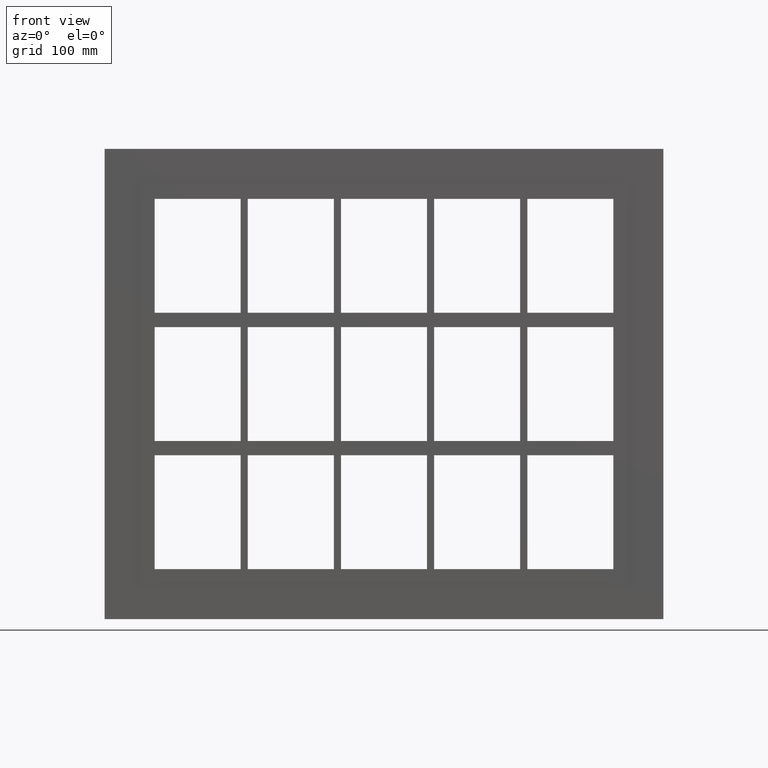
[diagram: clean part render]
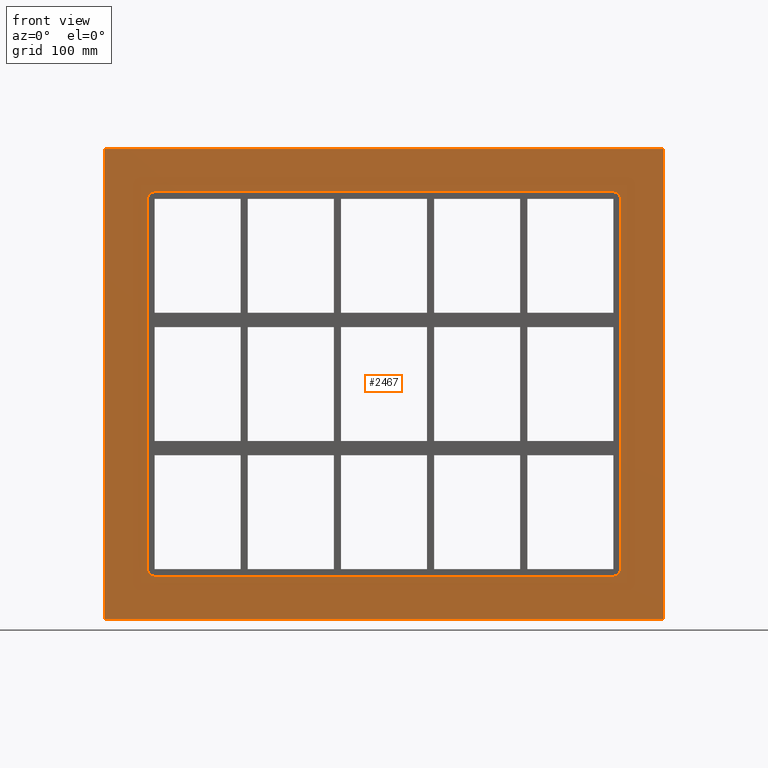
[diagram: same view with one face highlighted and labeled with its STEP entity id]
A machine part, front view. The second image highlights one B-rep face of the part: STEP entity #2467.
In plain terms, the highlighted planar face has unit normal (0, 1, 0).
Its self-contained STEP definition (entity closure, byte-faithful):
#2358=CARTESIAN_POINT('',(0.0,0.0,0.0));
#2359=DIRECTION('',(0.0,1.0,0.0));
#2360=DIRECTION('',(0.0,0.0,1.0));
#2361=AXIS2_PLACEMENT_3D('',#2358,#2359,#2360);
#2362=PLANE('',#2361);
#2363=CARTESIAN_POINT('',(-391.25,0.0,329.25));
#2364=VERTEX_POINT('',#2363);
#2365=CARTESIAN_POINT('',(391.25,0.0,329.25));
#2366=VERTEX_POINT('',#2365);
#2367=CARTESIAN_POINT('',(-391.25,0.0,329.25));
#2368=DIRECTION('',(1.0,0.0,0.0));
#2369=VECTOR('',#2368,782.5);
#2370=LINE('',#2367,#2369);
#2371=EDGE_CURVE('',#2364,#2366,#2370,.T.);
#2372=ORIENTED_EDGE('',*,*,#2371,.F.);
#2373=CARTESIAN_POINT('',(-391.25,0.0,-329.25));
#2374=VERTEX_POINT('',#2373);
#2375=CARTESIAN_POINT('',(-391.25,0.0,-329.25));
#2376=DIRECTION('',(0.0,0.0,1.0));
#2377=VECTOR('',#2376,658.5);
#2378=LINE('',#2375,#2377);
#2379=EDGE_CURVE('',#2374,#2364,#2378,.T.);
#2380=ORIENTED_EDGE('',*,*,#2379,.F.);
#2381=CARTESIAN_POINT('',(391.25,0.0,-329.25));
#2382=VERTEX_POINT('',#2381);
#2383=CARTESIAN_POINT('',(391.25,0.0,-329.25));
#2384=DIRECTION('',(-1.0,0.0,0.0));
#2385=VECTOR('',#2384,782.5);
#2386=LINE('',#2383,#2385);
#2387=EDGE_CURVE('',#2382,#2374,#2386,.T.);
#2388=ORIENTED_EDGE('',*,*,#2387,.F.);
#2389=CARTESIAN_POINT('',(391.25,0.0,329.25));
#2390=DIRECTION('',(0.0,0.0,-1.0));
#2391=VECTOR('',#2390,658.5);
#2392=LINE('',#2389,#2391);
#2393=EDGE_CURVE('',#2366,#2382,#2392,.T.);
#2394=ORIENTED_EDGE('',*,*,#2393,.F.);
#2395=EDGE_LOOP('',(#2372,#2380,#2388,#2394));
#2396=FACE_OUTER_BOUND('',#2395,.T.);
#2397=CARTESIAN_POINT('',(-331.25,0.0,-259.25000000000006));
#2398=VERTEX_POINT('',#2397);
#2399=CARTESIAN_POINT('',(-321.25,0.0,-269.25000000000006));
#2400=VERTEX_POINT('',#2399);
#2401=CARTESIAN_POINT('',(-321.25,0.0,-259.25000000000006));
#2402=DIRECTION('',(0.0,-1.0,0.0));
#2403=DIRECTION('',(-0.707106781186547,0.0,-0.707106781186547));
#2404=AXIS2_PLACEMENT_3D('',#2401,#2402,#2403);
#2405=CIRCLE('',#2404,9.999999999999998);
#2406=EDGE_CURVE('',#2398,#2400,#2405,.T.);
#2407=ORIENTED_EDGE('',*,*,#2406,.F.);
#2408=CARTESIAN_POINT('',(-331.25,0.0,259.25));
#2409=VERTEX_POINT('',#2408);
#2410=CARTESIAN_POINT('',(-331.25,0.0,259.25));
#2411=DIRECTION('',(0.0,0.0,-1.0));
#2412=VECTOR('',#2411,518.5);
#2413=LINE('',#2410,#2412);
#2414=EDGE_CURVE('',#2409,#2398,#2413,.T.);
#2415=ORIENTED_EDGE('',*,*,#2414,.F.);
#2416=CARTESIAN_POINT('',(-321.25,0.0,269.25));
#2417=VERTEX_POINT('',#2416);
#2418=CARTESIAN_POINT('',(-321.25,0.0,259.25));
#2419=DIRECTION('',(0.0,-1.0,0.0));
#2420=DIRECTION('',(-0.707106781186547,0.0,0.707106781186547));
#2421=AXIS2_PLACEMENT_3D('',#2418,#2419,#2420);
#2422=CIRCLE('',#2421,9.999999999999998);
#2423=EDGE_CURVE('',#2417,#2409,#2422,.T.);
#2424=ORIENTED_EDGE('',*,*,#2423,.F.);
#2425=CARTESIAN_POINT('',(321.25,0.0,269.25));
#2426=VERTEX_POINT('',#2425);
#2427=CARTESIAN_POINT('',(321.25,0.0,269.25));
#2428=DIRECTION('',(-1.0,0.0,0.0));
#2429=VECTOR('',#2428,642.5);
#2430=LINE('',#2427,#2429);
#2431=EDGE_CURVE('',#2426,#2417,#2430,.T.);
#2432=ORIENTED_EDGE('',*,*,#2431,.F.);
#2433=CARTESIAN_POINT('',(331.25,0.0,259.25));
#2434=VERTEX_POINT('',#2433);
#2435=CARTESIAN_POINT('',(321.25,0.0,259.25));
#2436=DIRECTION('',(0.0,-1.0,0.0));
#2437=DIRECTION('',(0.707106781186547,0.0,0.707106781186547));
#2438=AXIS2_PLACEMENT_3D('',#2435,#2436,#2437);
#2439=CIRCLE('',#2438,9.999999999999998);
#2440=EDGE_CURVE('',#2434,#2426,#2439,.T.);
#2441=ORIENTED_EDGE('',*,*,#2440,.F.);
#2442=CARTESIAN_POINT('',(331.25,0.0,-259.25000000000006));
#2443=VERTEX_POINT('',#2442);
#2444=CARTESIAN_POINT('',(331.25,0.0,-259.25));
#2445=DIRECTION('',(0.0,0.0,1.0));
#2446=VECTOR('',#2445,518.5);
#2447=LINE('',#2444,#2446);
#2448=EDGE_CURVE('',#2443,#2434,#2447,.T.);
#2449=ORIENTED_EDGE('',*,*,#2448,.F.);
#2450=CARTESIAN_POINT('',(321.25,0.0,-269.25000000000006));
#2451=VERTEX_POINT('',#2450);
#2452=CARTESIAN_POINT('',(321.25,0.0,-259.25000000000006));
#2453=DIRECTION('',(0.0,-1.0,0.0));
#2454=DIRECTION('',(0.707106781186547,0.0,-0.707106781186547));
#2455=AXIS2_PLACEMENT_3D('',#2452,#2453,#2454);
#2456=CIRCLE('',#2455,9.999999999999998);
#2457=EDGE_CURVE('',#2451,#2443,#2456,.T.);
#2458=ORIENTED_EDGE('',*,*,#2457,.F.);
#2459=CARTESIAN_POINT('',(-321.25,0.0,-269.25000000000006));
#2460=DIRECTION('',(1.0,0.0,0.0));
#2461=VECTOR('',#2460,642.5);
#2462=LINE('',#2459,#2461);
#2463=EDGE_CURVE('',#2400,#2451,#2462,.T.);
#2464=ORIENTED_EDGE('',*,*,#2463,.F.);
#2465=EDGE_LOOP('',(#2407,#2415,#2424,#2432,#2441,#2449,#2458,#2464));
#2466=FACE_BOUND('',#2465,.T.);
#2467=ADVANCED_FACE('',(#2396,#2466),#2362,.F.);